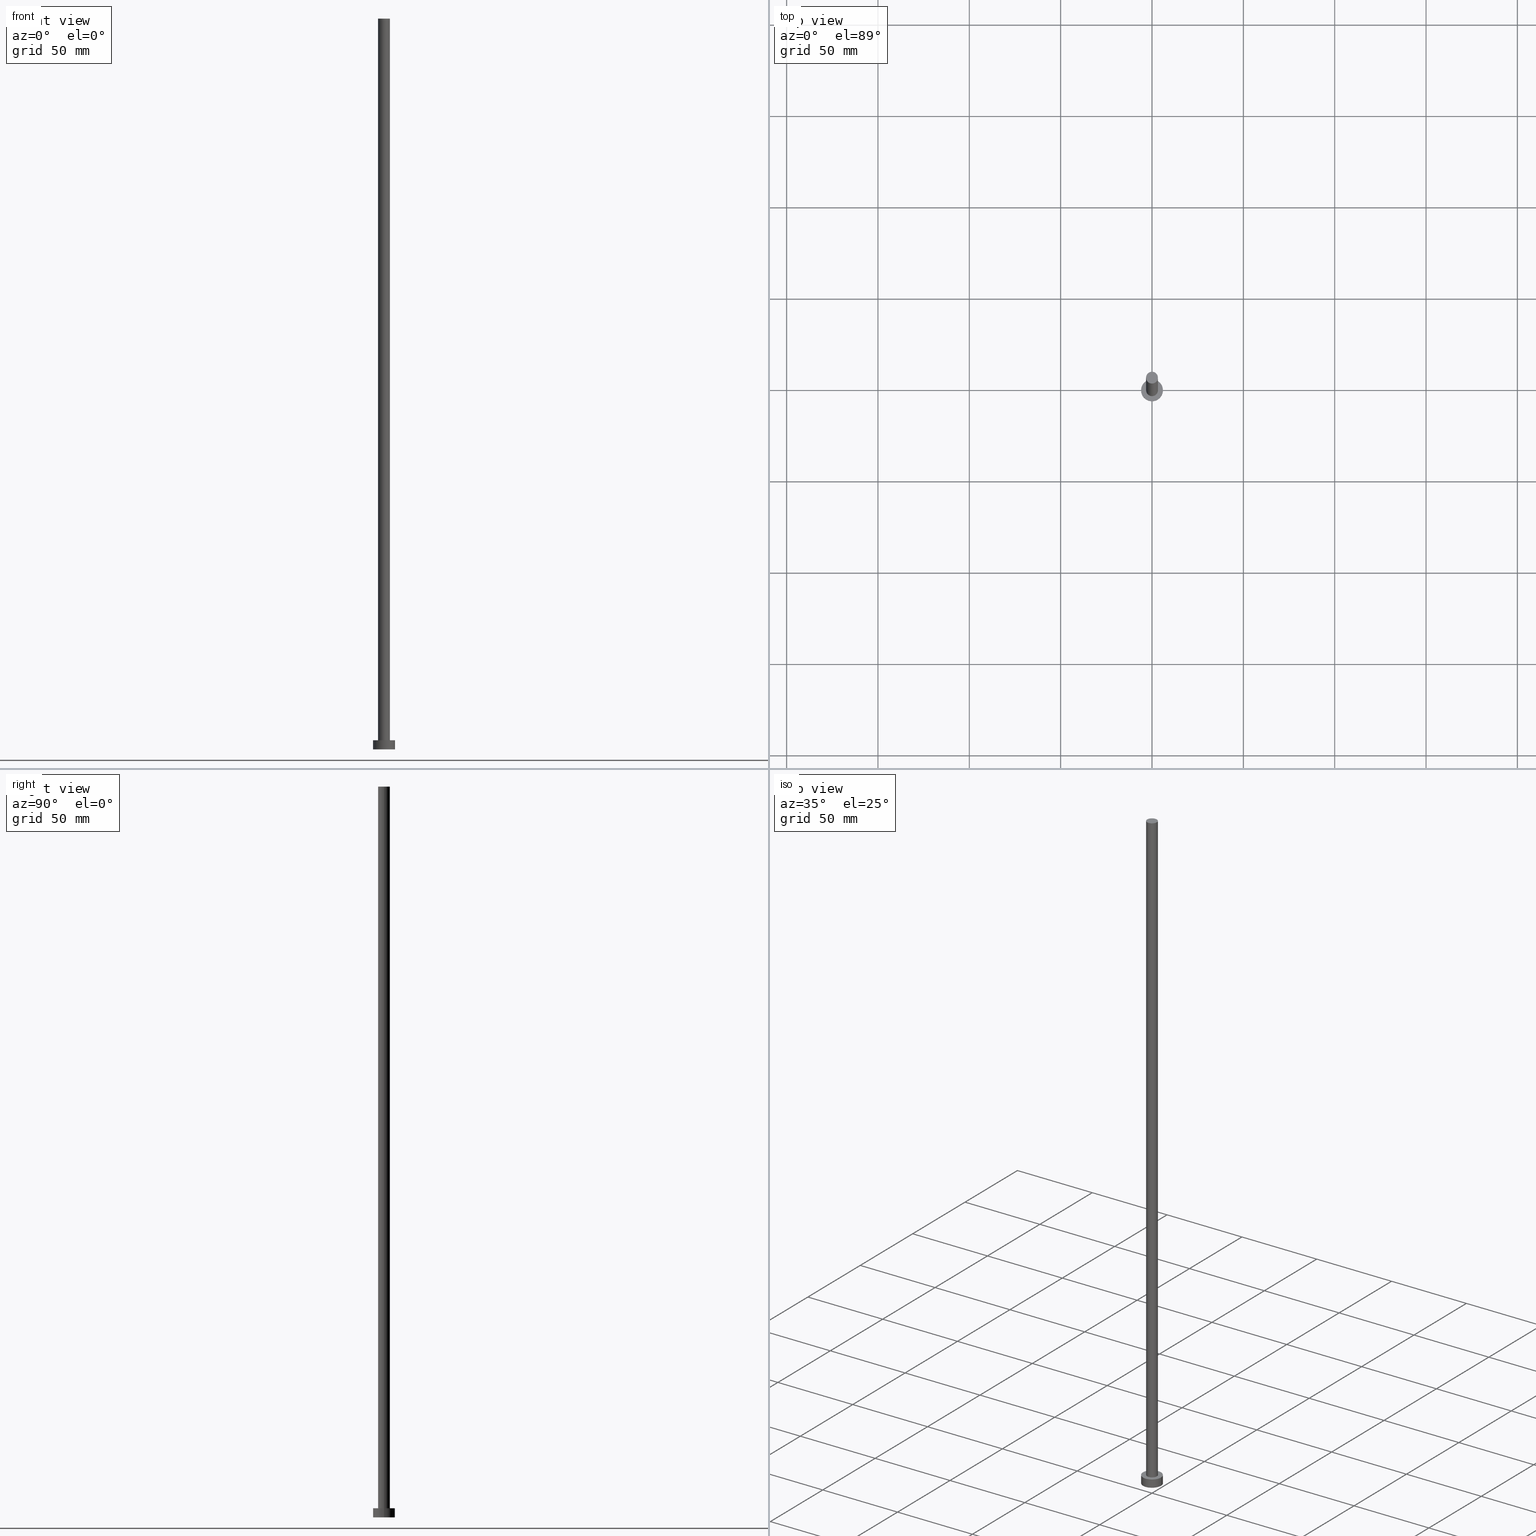
[diagram: canonical four-view strip — front | top / right | iso, engineering-drawing reading convention]
A machine part, canonical four-view strip (front | top / right | iso — engineering-drawing reading convention). The complete STEP part file that produces these views, byte-faithful:
ISO-10303-21;
HEADER;
FILE_DESCRIPTION (( 'STEP AP203' ),
    '1' );
FILE_NAME ('a42a.STEP',
    '2023-02-13T13:37:05',
    ( '' ),
    ( '' ),
    'SwSTEP 2.0',
    'SolidWorks 2019',
    '' );
FILE_SCHEMA (( 'CONFIG_CONTROL_DESIGN' ));
ENDSEC;

DATA;
#1 = CYLINDRICAL_SURFACE ( 'NONE', #133, 3.250000000000000444 ) ;
#2 = EDGE_CURVE ( 'NONE', #101, #217, #121, .T. ) ;
#3 = DIRECTION ( 'NONE',  ( 0.000000000000000000, 0.000000000000000000, 1.000000000000000000 ) ) ;
#4 = CARTESIAN_POINT ( 'NONE',  ( 0.000000000000000000, 0.000000000000000000, 5.000000000000000000 ) ) ;
#5 = EDGE_LOOP ( 'NONE', ( #82, #64 ) ) ;
#6 = CLOSED_SHELL ( 'NONE', ( #89, #226, #168, #66, #37, #132, #238 ) ) ;
#7 = FACE_BOUND ( 'NONE', #174, .T. ) ;
#8 = AXIS2_PLACEMENT_3D ( 'NONE', #94, #113, #233 ) ;
#9 = AXIS2_PLACEMENT_3D ( 'NONE', #4, #96, #158 ) ;
#10 = CC_DESIGN_PERSON_AND_ORGANIZATION_ASSIGNMENT ( #69, #13, ( #102 ) ) ;
#11 = FACE_OUTER_BOUND ( 'NONE', #5, .T. ) ;
#12 = ORIENTED_EDGE ( 'NONE', *, *, #108, .T. ) ;
#13 = PERSON_AND_ORGANIZATION_ROLE ( 'classification_officer' ) ;
#14 = VERTEX_POINT ( 'NONE', #68 ) ;
#15 = ORIENTED_EDGE ( 'NONE', *, *, #149, .T. ) ;
#16 = CC_DESIGN_APPROVAL ( #182, ( #159 ) ) ;
#17 = CALENDAR_DATE ( 2023, 13, 2 ) ;
#18 =( NAMED_UNIT ( * ) PLANE_ANGLE_UNIT ( ) SI_UNIT ( $, .RADIAN. ) );
#19 = CALENDAR_DATE ( 2023, 13, 2 ) ;
#20 = DIRECTION ( 'NONE',  ( -0.000000000000000000, -0.000000000000000000, -1.000000000000000000 ) ) ;
#21 = EDGE_CURVE ( 'NONE', #217, #101, #86, .T. ) ;
#22 = FACE_OUTER_BOUND ( 'NONE', #71, .T. ) ;
#23 =( NAMED_UNIT ( * ) SI_UNIT ( $, .STERADIAN. ) SOLID_ANGLE_UNIT ( ) );
#24 = CARTESIAN_POINT ( 'NONE',  ( 0.000000000000000000, 0.000000000000000000, 5.000000000000000000 ) ) ;
#25 = CARTESIAN_POINT ( 'NONE',  ( 0.000000000000000000, 0.000000000000000000, 5.000000000000000000 ) ) ;
#26 = ORIENTED_EDGE ( 'NONE', *, *, #119, .F. ) ;
#27 = CIRCLE ( 'NONE', #54, 6.000000000000000888 ) ;
#28 = VERTEX_POINT ( 'NONE', #223 ) ;
#29 = EDGE_CURVE ( 'NONE', #201, #14, #91, .T. ) ;
#30 = ORIENTED_EDGE ( 'NONE', *, *, #2, .F. ) ;
#31 = LOCAL_TIME ( 14, 37, 5.000000000000000000, #188 ) ;
#32 = DIRECTION ( 'NONE',  ( 0.000000000000000000, 0.000000000000000000, 1.000000000000000000 ) ) ;
#33 = ORIENTED_EDGE ( 'NONE', *, *, #29, .T. ) ;
#34 = VERTEX_POINT ( 'NONE', #51 ) ;
#35 = PERSON_AND_ORGANIZATION_ROLE ( 'design_owner' ) ;
#36 = PERSON_AND_ORGANIZATION ( #222, #242 ) ;
#37 = ADVANCED_FACE ( 'NONE', ( #11 ), #87, .F. ) ;
#38 = LINE ( 'NONE', #194, #52 ) ;
#39 = CYLINDRICAL_SURFACE ( 'NONE', #173, 3.250000000000000444 ) ;
#40 = PERSON_AND_ORGANIZATION_ROLE ( 'design_supplier' ) ;
#41 = FACE_OUTER_BOUND ( 'NONE', #165, .T. ) ;
#42 = DIRECTION ( 'NONE',  ( -1.000000000000000000, 0.000000000000000000, 0.000000000000000000 ) ) ;
#43 = ORIENTED_EDGE ( 'NONE', *, *, #149, .F. ) ;
#44 = AXIS2_PLACEMENT_3D ( 'NONE', #169, #32, #126 ) ;
#45 = AXIS2_PLACEMENT_3D ( 'NONE', #73, #209, #214 ) ;
#46 = ORIENTED_EDGE ( 'NONE', *, *, #105, .T. ) ;
#47 = VECTOR ( 'NONE', #198, 1000.000000000000000 ) ;
#48 = APPROVAL ( #228, 'NEUR�EN�' ) ;
#49 = EDGE_CURVE ( 'NONE', #201, #34, #224, .T. ) ;
#50 = DIRECTION ( 'NONE',  ( 1.000000000000000000, 0.000000000000000000, 0.000000000000000000 ) ) ;
#51 = CARTESIAN_POINT ( 'NONE',  ( -6.000000000000000888, 0.000000000000000000, 0.000000000000000000 ) ) ;
#52 = VECTOR ( 'NONE', #116, 1000.000000000000000 ) ;
#53 = SHAPE_DEFINITION_REPRESENTATION ( #212, #246 ) ;
#54 = AXIS2_PLACEMENT_3D ( 'NONE', #162, #3, #253 ) ;
#55 = COORDINATED_UNIVERSAL_TIME_OFFSET ( 1, 0, .AHEAD. ) ;
#56 = MECHANICAL_CONTEXT ( 'NONE', #118, 'mechanical' ) ;
#57 = APPROVAL_DATE_TIME ( #252, #140 ) ;
#58 = FACE_OUTER_BOUND ( 'NONE', #251, .T. ) ;
#59 = DIRECTION ( 'NONE',  ( 1.000000000000000000, 0.000000000000000000, 0.000000000000000000 ) ) ;
#60 = APPLICATION_PROTOCOL_DEFINITION ( 'international standard', 'config_control_design', 1994, #118 ) ;
#61 = CARTESIAN_POINT ( 'NONE',  ( -6.000000000000000888, 0.000000000000000000, 5.000000000000000000 ) ) ;
#62 = DIRECTION ( 'NONE',  ( 1.000000000000000000, 0.000000000000000000, -0.000000000000000000 ) ) ;
#63 = ORIENTED_EDGE ( 'NONE', *, *, #99, .T. ) ;
#64 = ORIENTED_EDGE ( 'NONE', *, *, #248, .F. ) ;
#65 = AXIS2_PLACEMENT_3D ( 'NONE', #171, #185, #50 ) ;
#66 = ADVANCED_FACE ( 'NONE', ( #7, #84 ), #137, .T. ) ;
#67 = ORIENTED_EDGE ( 'NONE', *, *, #49, .T. ) ;
#68 = CARTESIAN_POINT ( 'NONE',  ( 6.000000000000000888, 7.347880794884120722E-16, 5.000000000000000000 ) ) ;
#69 = PERSON_AND_ORGANIZATION ( #222, #242 ) ;
#70 = CC_DESIGN_DATE_AND_TIME_ASSIGNMENT ( #208, #93, ( #159 ) ) ;
#71 = EDGE_LOOP ( 'NONE', ( #122, #30, #15, #46 ) ) ;
#72 = VECTOR ( 'NONE', #199, 1000.000000000000000 ) ;
#73 = CARTESIAN_POINT ( 'NONE',  ( 0.000000000000000000, 0.000000000000000000, 0.000000000000000000 ) ) ;
#74 = PERSON_AND_ORGANIZATION ( #222, #242 ) ;
#75 = CYLINDRICAL_SURFACE ( 'NONE', #8, 6.000000000000000888 ) ;
#76 = DIRECTION ( 'NONE',  ( 0.000000000000000000, 0.000000000000000000, 1.000000000000000000 ) ) ;
#77 = APPROVAL_STATUS ( 'not_yet_approved' ) ;
#78 = LINE ( 'NONE', #177, #47 ) ;
#79 = CARTESIAN_POINT ( 'NONE',  ( 0.000000000000000000, 0.000000000000000000, 400.0000000000000000 ) ) ;
#80 = VERTEX_POINT ( 'NONE', #195 ) ;
#81 = DIRECTION ( 'NONE',  ( 1.000000000000000000, 0.000000000000000000, 0.000000000000000000 ) ) ;
#82 = ORIENTED_EDGE ( 'NONE', *, *, #202, .F. ) ;
#83 = APPROVAL_PERSON_ORGANIZATION ( #92, #140, #109 ) ;
#84 = FACE_OUTER_BOUND ( 'NONE', #239, .T. ) ;
#85 = LOCAL_TIME ( 14, 37, 5.000000000000000000, #189 ) ;
#86 = CIRCLE ( 'NONE', #221, 3.250000000000000444 ) ;
#87 = PLANE ( 'NONE',  #250 ) ;
#88 = APPROVAL_ROLE ( '' ) ;
#89 = ADVANCED_FACE ( 'NONE', ( #98 ), #39, .T. ) ;
#90 = ORIENTED_EDGE ( 'NONE', *, *, #247, .T. ) ;
#91 = CIRCLE ( 'NONE', #65, 6.000000000000000888 ) ;
#92 = PERSON_AND_ORGANIZATION ( #222, #242 ) ;
#93 = DATE_TIME_ROLE ( 'creation_date' ) ;
#94 = CARTESIAN_POINT ( 'NONE',  ( 0.000000000000000000, 0.000000000000000000, 5.000000000000000000 ) ) ;
#95 = PRODUCT ( 'a42a', 'a42a', '', ( #56 ) ) ;
#96 = DIRECTION ( 'NONE',  ( 0.000000000000000000, 0.000000000000000000, 1.000000000000000000 ) ) ;
#97 = DIRECTION ( 'NONE',  ( -1.000000000000000000, 0.000000000000000000, 0.000000000000000000 ) ) ;
#98 = FACE_OUTER_BOUND ( 'NONE', #143, .T. ) ;
#99 = EDGE_CURVE ( 'NONE', #217, #80, #216, .T. ) ;
#100 = ORIENTED_EDGE ( 'NONE', *, *, #105, .F. ) ;
#101 = VERTEX_POINT ( 'NONE', #114 ) ;
#102 = SECURITY_CLASSIFICATION ( '', '', #115 ) ;
#103 = CC_DESIGN_SECURITY_CLASSIFICATION ( #102, ( #192 ) ) ;
#104 = DIRECTION ( 'NONE',  ( 0.000000000000000000, 0.000000000000000000, 1.000000000000000000 ) ) ;
#105 = EDGE_CURVE ( 'NONE', #227, #80, #206, .T. ) ;
#106 = ORIENTED_EDGE ( 'NONE', *, *, #119, .T. ) ;
#107 = ORIENTED_EDGE ( 'NONE', *, *, #2, .T. ) ;
#108 = EDGE_CURVE ( 'NONE', #14, #201, #129, .T. ) ;
#109 = APPROVAL_ROLE ( '' ) ;
#110 = CC_DESIGN_PERSON_AND_ORGANIZATION_ASSIGNMENT ( #74, #40, ( #192 ) ) ;
#111 =( LENGTH_UNIT ( ) NAMED_UNIT ( * ) SI_UNIT ( .MILLI., .METRE. ) );
#112 = PERSON_AND_ORGANIZATION ( #222, #242 ) ;
#113 = DIRECTION ( 'NONE',  ( -0.000000000000000000, -0.000000000000000000, -1.000000000000000000 ) ) ;
#114 = CARTESIAN_POINT ( 'NONE',  ( -3.250000000000000444, 0.000000000000000000, 400.0000000000000000 ) ) ;
#115 = SECURITY_CLASSIFICATION_LEVEL ( 'unclassified' ) ;
#116 = DIRECTION ( 'NONE',  ( -0.000000000000000000, -0.000000000000000000, -1.000000000000000000 ) ) ;
#117 = PLANE ( 'NONE',  #249 ) ;
#118 = APPLICATION_CONTEXT ( 'configuration controlled 3d designs of mechanical parts and assemblies' ) ;
#119 = EDGE_CURVE ( 'NONE', #80, #227, #124, .T. ) ;
#120 = CARTESIAN_POINT ( 'NONE',  ( 3.250000000000000444, 3.980102097228897245E-16, 400.0000000000000000 ) ) ;
#121 = CIRCLE ( 'NONE', #44, 3.250000000000000444 ) ;
#122 = ORIENTED_EDGE ( 'NONE', *, *, #99, .F. ) ;
#123 = CC_DESIGN_APPROVAL ( #48, ( #102 ) ) ;
#124 = CIRCLE ( 'NONE', #9, 3.250000000000000444 ) ;
#125 = ORIENTED_EDGE ( 'NONE', *, *, #202, .T. ) ;
#126 = DIRECTION ( 'NONE',  ( 1.000000000000000000, 0.000000000000000000, 0.000000000000000000 ) ) ;
#127 = CARTESIAN_POINT ( 'NONE',  ( -6.000000000000000888, 0.000000000000000000, 5.000000000000000000 ) ) ;
#128 = LOCAL_TIME ( 14, 37, 5.000000000000000000, #55 ) ;
#129 = CIRCLE ( 'NONE', #170, 6.000000000000000888 ) ;
#130 = ORIENTED_EDGE ( 'NONE', *, *, #248, .T. ) ;
#131 = CALENDAR_DATE ( 2023, 13, 2 ) ;
#132 = ADVANCED_FACE ( 'NONE', ( #22 ), #1, .T. ) ;
#133 = AXIS2_PLACEMENT_3D ( 'NONE', #79, #163, #179 ) ;
#134 = PERSON_AND_ORGANIZATION_ROLE ( 'creator' ) ;
#135 = APPROVAL_STATUS ( 'not_yet_approved' ) ;
#136 = FACE_OUTER_BOUND ( 'NONE', #181, .T. ) ;
#137 = PLANE ( 'NONE',  #243 ) ;
#138 = DATE_AND_TIME ( #131, #85 ) ;
#139 = DIRECTION ( 'NONE',  ( 1.000000000000000000, 0.000000000000000000, 0.000000000000000000 ) ) ;
#140 = APPROVAL ( #77, 'NEUR�EN�' ) ;
#141 = DIRECTION ( 'NONE',  ( 1.000000000000000000, 0.000000000000000000, -0.000000000000000000 ) ) ;
#142 = CARTESIAN_POINT ( 'NONE',  ( 0.000000000000000000, 0.000000000000000000, 400.0000000000000000 ) ) ;
#143 = EDGE_LOOP ( 'NONE', ( #200, #63, #106, #43 ) ) ;
#144 = DESIGN_CONTEXT ( 'detailed design', #148, 'design' ) ;
#145 = ORIENTED_EDGE ( 'NONE', *, *, #49, .F. ) ;
#146 = CC_DESIGN_APPROVAL ( #140, ( #192 ) ) ;
#147 = VECTOR ( 'NONE', #205, 1000.000000000000000 ) ;
#148 = APPLICATION_CONTEXT ( 'configuration controlled 3d designs of mechanical parts and assemblies' ) ;
#149 = EDGE_CURVE ( 'NONE', #101, #227, #78, .T. ) ;
#150 = CARTESIAN_POINT ( 'NONE',  ( 0.000000000000000000, 0.000000000000000000, 400.0000000000000000 ) ) ;
#151 = CARTESIAN_POINT ( 'NONE',  ( 0.000000000000000000, 0.000000000000000000, 0.000000000000000000 ) ) ;
#152 = DATE_AND_TIME ( #153, #31 ) ;
#153 = CALENDAR_DATE ( 2023, 13, 2 ) ;
#154 = PERSON_AND_ORGANIZATION ( #222, #242 ) ;
#155 = CC_DESIGN_PERSON_AND_ORGANIZATION_ASSIGNMENT ( #175, #156, ( #192 ) ) ;
#156 = PERSON_AND_ORGANIZATION_ROLE ( 'creator' ) ;
#157 = CARTESIAN_POINT ( 'NONE',  ( 0.000000000000000000, 0.000000000000000000, 400.0000000000000000 ) ) ;
#158 = DIRECTION ( 'NONE',  ( 1.000000000000000000, 0.000000000000000000, 0.000000000000000000 ) ) ;
#159 = PRODUCT_DEFINITION ( 'NEZN�M�', '', #192, #144 ) ;
#160 = CARTESIAN_POINT ( 'NONE',  ( 0.000000000000000000, 0.000000000000000000, 0.000000000000000000 ) ) ;
#161 = PERSON_AND_ORGANIZATION ( #222, #242 ) ;
#162 = CARTESIAN_POINT ( 'NONE',  ( 0.000000000000000000, 0.000000000000000000, 0.000000000000000000 ) ) ;
#163 = DIRECTION ( 'NONE',  ( -0.000000000000000000, -0.000000000000000000, -1.000000000000000000 ) ) ;
#164 = ORIENTED_EDGE ( 'NONE', *, *, #247, .F. ) ;
#165 = EDGE_LOOP ( 'NONE', ( #164, #218, #67, #125 ) ) ;
#166 = LOCAL_TIME ( 14, 37, 5.000000000000000000, #193 ) ;
#167 = CC_DESIGN_DATE_AND_TIME_ASSIGNMENT ( #152, #196, ( #102 ) ) ;
#168 = ADVANCED_FACE ( 'NONE', ( #41 ), #211, .T. ) ;
#169 = CARTESIAN_POINT ( 'NONE',  ( 0.000000000000000000, 0.000000000000000000, 400.0000000000000000 ) ) ;
#170 = AXIS2_PLACEMENT_3D ( 'NONE', #234, #178, #81 ) ;
#171 = CARTESIAN_POINT ( 'NONE',  ( 0.000000000000000000, 0.000000000000000000, 5.000000000000000000 ) ) ;
#172 = APPROVAL_PERSON_ORGANIZATION ( #154, #48, #88 ) ;
#173 = AXIS2_PLACEMENT_3D ( 'NONE', #142, #213, #42 ) ;
#174 = EDGE_LOOP ( 'NONE', ( #100, #26 ) ) ;
#175 = PERSON_AND_ORGANIZATION ( #222, #242 ) ;
#176 = DATE_AND_TIME ( #232, #128 ) ;
#177 = CARTESIAN_POINT ( 'NONE',  ( -3.250000000000000444, 0.000000000000000000, 400.0000000000000000 ) ) ;
#178 = DIRECTION ( 'NONE',  ( 0.000000000000000000, 0.000000000000000000, 1.000000000000000000 ) ) ;
#179 = DIRECTION ( 'NONE',  ( -1.000000000000000000, 0.000000000000000000, 0.000000000000000000 ) ) ;
#180 = CARTESIAN_POINT ( 'NONE',  ( 0.000000000000000000, 0.000000000000000000, 5.000000000000000000 ) ) ;
#181 = EDGE_LOOP ( 'NONE', ( #107, #241 ) ) ;
#182 = APPROVAL ( #135, 'NEUR�EN�' ) ;
#183 = MANIFOLD_SOLID_BREP ( 'P�idat vysunut�m3', #6 ) ;
#184 = APPROVAL_PERSON_ORGANIZATION ( #36, #182, #231 ) ;
#185 = DIRECTION ( 'NONE',  ( 0.000000000000000000, 0.000000000000000000, 1.000000000000000000 ) ) ;
#186 = AXIS2_PLACEMENT_3D ( 'NONE', #180, #76, #59 ) ;
#187 = DIRECTION ( 'NONE',  ( 1.000000000000000000, 0.000000000000000000, 0.000000000000000000 ) ) ;
#188 = COORDINATED_UNIVERSAL_TIME_OFFSET ( 1, 0, .AHEAD. ) ;
#189 = COORDINATED_UNIVERSAL_TIME_OFFSET ( 1, 0, .AHEAD. ) ;
#190 = CC_DESIGN_PERSON_AND_ORGANIZATION_ASSIGNMENT ( #161, #35, ( #95 ) ) ;
#191 = COORDINATED_UNIVERSAL_TIME_OFFSET ( 1, 0, .AHEAD. ) ;
#192 = PRODUCT_DEFINITION_FORMATION_WITH_SPECIFIED_SOURCE ( 'LIBOVOLN�', '', #95, .NOT_KNOWN. ) ;
#193 = COORDINATED_UNIVERSAL_TIME_OFFSET ( 1, 0, .AHEAD. ) ;
#194 = CARTESIAN_POINT ( 'NONE',  ( 6.000000000000000888, 7.347880794884120722E-16, 5.000000000000000000 ) ) ;
#195 = CARTESIAN_POINT ( 'NONE',  ( 3.250000000000000444, 3.980102097228897245E-16, 5.000000000000000000 ) ) ;
#196 = DATE_TIME_ROLE ( 'classification_date' ) ;
#197 = DIRECTION ( 'NONE',  ( 0.000000000000000000, 0.000000000000000000, 1.000000000000000000 ) ) ;
#198 = DIRECTION ( 'NONE',  ( -0.000000000000000000, -0.000000000000000000, -1.000000000000000000 ) ) ;
#199 = DIRECTION ( 'NONE',  ( -0.000000000000000000, -0.000000000000000000, -1.000000000000000000 ) ) ;
#200 = ORIENTED_EDGE ( 'NONE', *, *, #21, .F. ) ;
#201 = VERTEX_POINT ( 'NONE', #61 ) ;
#202 = EDGE_CURVE ( 'NONE', #34, #28, #27, .T. ) ;
#203 = DIRECTION ( 'NONE',  ( 0.000000000000000000, 0.000000000000000000, 1.000000000000000000 ) ) ;
#204 = CIRCLE ( 'NONE', #225, 6.000000000000000888 ) ;
#205 = DIRECTION ( 'NONE',  ( -0.000000000000000000, -0.000000000000000000, -1.000000000000000000 ) ) ;
#206 = CIRCLE ( 'NONE', #186, 3.250000000000000444 ) ;
#207 = CC_DESIGN_PERSON_AND_ORGANIZATION_ASSIGNMENT ( #112, #134, ( #159 ) ) ;
#208 = DATE_AND_TIME ( #19, #166 ) ;
#209 = DIRECTION ( 'NONE',  ( 0.000000000000000000, 0.000000000000000000, 1.000000000000000000 ) ) ;
#210 = APPLICATION_PROTOCOL_DEFINITION ( 'international standard', 'config_control_design', 1994, #148 ) ;
#211 = CYLINDRICAL_SURFACE ( 'NONE', #230, 6.000000000000000888 ) ;
#212 = PRODUCT_DEFINITION_SHAPE ( 'NONE', 'NONE',  #159 ) ;
#213 = DIRECTION ( 'NONE',  ( -0.000000000000000000, -0.000000000000000000, -1.000000000000000000 ) ) ;
#214 = DIRECTION ( 'NONE',  ( 1.000000000000000000, 0.000000000000000000, 0.000000000000000000 ) ) ;
#215 = CARTESIAN_POINT ( 'NONE',  ( 3.250000000000000444, 3.980102097228897245E-16, 400.0000000000000000 ) ) ;
#216 = LINE ( 'NONE', #120, #72 ) ;
#217 = VERTEX_POINT ( 'NONE', #215 ) ;
#218 = ORIENTED_EDGE ( 'NONE', *, *, #29, .F. ) ;
#219 =( GEOMETRIC_REPRESENTATION_CONTEXT ( 3 ) GLOBAL_UNCERTAINTY_ASSIGNED_CONTEXT ( ( #240 ) ) GLOBAL_UNIT_ASSIGNED_CONTEXT ( ( #111, #18, #23 ) ) REPRESENTATION_CONTEXT ( 'NONE', 'WORKASPACE' ) );
#220 = PRODUCT_RELATED_PRODUCT_CATEGORY ( 'detail', '', ( #95 ) ) ;
#221 = AXIS2_PLACEMENT_3D ( 'NONE', #150, #104, #187 ) ;
#222 = PERSON ( 'NEUR�EN�', 'NEUR�EN�', 'NEUR�EN�', ('NEUR�EN�'), ('NEUR�EN�'), ('NEUR�EN�') ) ;
#223 = CARTESIAN_POINT ( 'NONE',  ( 6.000000000000000888, 7.347880794884120722E-16, 0.000000000000000000 ) ) ;
#224 = LINE ( 'NONE', #127, #147 ) ;
#225 = AXIS2_PLACEMENT_3D ( 'NONE', #160, #197, #139 ) ;
#226 = ADVANCED_FACE ( 'NONE', ( #58 ), #75, .T. ) ;
#227 = VERTEX_POINT ( 'NONE', #255 ) ;
#228 = APPROVAL_STATUS ( 'not_yet_approved' ) ;
#229 = LOCAL_TIME ( 14, 37, 5.000000000000000000, #191 ) ;
#230 = AXIS2_PLACEMENT_3D ( 'NONE', #24, #20, #97 ) ;
#231 = APPROVAL_ROLE ( '' ) ;
#232 = CALENDAR_DATE ( 2023, 13, 2 ) ;
#233 = DIRECTION ( 'NONE',  ( -1.000000000000000000, 0.000000000000000000, 0.000000000000000000 ) ) ;
#234 = CARTESIAN_POINT ( 'NONE',  ( 0.000000000000000000, 0.000000000000000000, 5.000000000000000000 ) ) ;
#235 = APPROVAL_DATE_TIME ( #138, #48 ) ;
#236 = DIRECTION ( 'NONE',  ( 0.000000000000000000, 0.000000000000000000, 1.000000000000000000 ) ) ;
#237 = DIRECTION ( 'NONE',  ( 0.000000000000000000, 0.000000000000000000, 1.000000000000000000 ) ) ;
#238 = ADVANCED_FACE ( 'NONE', ( #136 ), #117, .T. ) ;
#239 = EDGE_LOOP ( 'NONE', ( #33, #12 ) ) ;
#240 = UNCERTAINTY_MEASURE_WITH_UNIT (LENGTH_MEASURE( 1.000000000000000082E-05 ), #111, 'distance_accuracy_value', 'NONE');
#241 = ORIENTED_EDGE ( 'NONE', *, *, #21, .T. ) ;
#242 = ORGANIZATION ( 'NEUR�EN�', 'NEUR�EN�', '' ) ;
#243 = AXIS2_PLACEMENT_3D ( 'NONE', #25, #237, #62 ) ;
#244 = DIRECTION ( 'NONE',  ( 1.000000000000000000, 0.000000000000000000, -0.000000000000000000 ) ) ;
#245 = ORIENTED_EDGE ( 'NONE', *, *, #108, .F. ) ;
#246 = ADVANCED_BREP_SHAPE_REPRESENTATION ( 'a42a', ( #183, #45 ), #219 ) ;
#247 = EDGE_CURVE ( 'NONE', #14, #28, #38, .T. ) ;
#248 = EDGE_CURVE ( 'NONE', #28, #34, #204, .T. ) ;
#249 = AXIS2_PLACEMENT_3D ( 'NONE', #157, #236, #141 ) ;
#250 = AXIS2_PLACEMENT_3D ( 'NONE', #151, #203, #244 ) ;
#251 = EDGE_LOOP ( 'NONE', ( #245, #90, #130, #145 ) ) ;
#252 = DATE_AND_TIME ( #17, #229 ) ;
#253 = DIRECTION ( 'NONE',  ( 1.000000000000000000, 0.000000000000000000, 0.000000000000000000 ) ) ;
#254 = APPROVAL_DATE_TIME ( #176, #182 ) ;
#255 = CARTESIAN_POINT ( 'NONE',  ( -3.250000000000000444, 0.000000000000000000, 5.000000000000000000 ) ) ;
ENDSEC;
END-ISO-10303-21;
